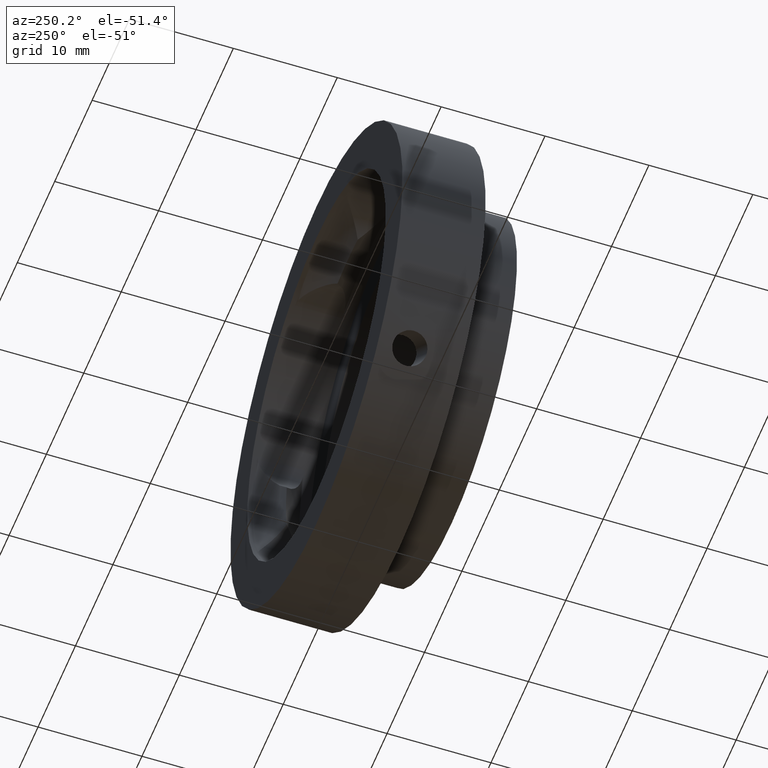
[diagram: clean part render]
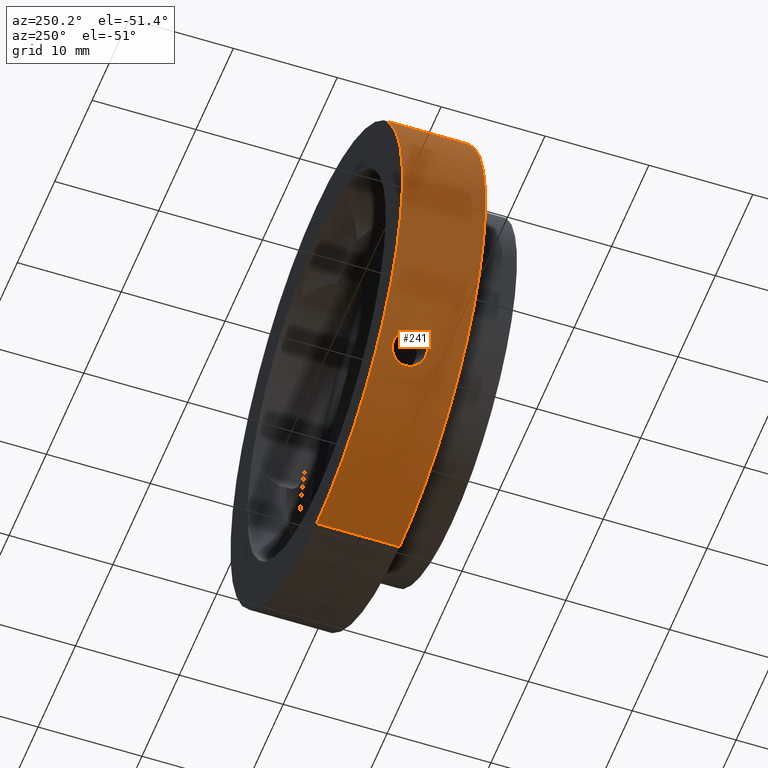
[diagram: same view with one face highlighted and labeled with its STEP entity id]
A machine part, auxiliary view. The second image highlights one B-rep face of the part: STEP entity #241.
In plain terms, the highlighted cylindrical surface (partial cylindrical patch) has radius 23 mm, axis along (-0, -1, -0).
Its self-contained STEP definition (entity closure, byte-faithful):
#1 = CARTESIAN_POINT ( 'NONE',  ( -15.44766139996509000, 0.9967213114754006600, -17.04023935489254200 ) ) ;
#4 = B_SPLINE_CURVE_WITH_KNOTS ( 'NONE', 3,
 ( #167, #364, #1014, #1008, #1020, #450, #83, #826, #555, #545, #1121, #77, #652, #648, #455, #920, #1216, #1117, #840, #1222, #1212, #445, #747, #741 ),
 .UNSPECIFIED., .F., .F.,
 ( 4, 2, 2, 2, 2, 2, 2, 2, 2, 2, 2, 4 ),
 ( 0.005160308724662709800, 0.005805198789600641100, 0.006450088854538571500, 0.006772533887007533200, 0.007094978919476494100, 0.007417423951945455900, 0.007739868984414413300, 0.008384759049352329800, 0.008707204081821285500, 0.009029649114290237700, 0.009674539179228147300, 0.01031942924416605700 ),
 .UNSPECIFIED. ) ;
#16 = B_SPLINE_CURVE_WITH_KNOTS ( 'NONE', 3,
 ( #1072, #513, #156, #1195, #339, #617, #1003, #727, #991, #238, #245, #708, #897, #427, #1185, #68, #805, #438, #913, #811, #242, #716, #816, #346, #1200, #422, #1098, #530, #534, #998 ),
 .UNSPECIFIED., .F., .F.,
 ( 4, 2, 2, 2, 2, 2, 2, 2, 2, 2, 2, 2, 2, 2, 4 ),
 ( 0.0000000000000000000, 0.0003225192952914211500, 0.0006450385905828423000, 0.0009675578858742635600, 0.001290077181165682200, 0.001935115771748520400, 0.002580154362331358400, 0.002902673657622777600, 0.003225192952914196300, 0.003547712248205615100, 0.003870231543497033900, 0.004192750838788453100, 0.004515270134079872300, 0.004837789429371290600, 0.005160308724662709800 ),
 .UNSPECIFIED. ) ;
#54 = EDGE_CURVE ( 'NONE', #360, #614, #989, .T. ) ;
#68 = CARTESIAN_POINT ( 'NONE',  ( -16.92331543695808400, 2.593873815498271900, -15.57602633159074700 ) ) ;
#77 = CARTESIAN_POINT ( 'NONE',  ( -16.77989647972865600, -0.6424296335856365400, -15.73042265511519800 ) ) ;
#83 = CARTESIAN_POINT ( 'NONE',  ( -17.30994875816762500, -0.3149916606470508100, -15.14508916357058900 ) ) ;
#97 = ORIENTED_EDGE ( 'NONE', *, *, #736, .T. ) ;
#125 = EDGE_LOOP ( 'NONE', ( #253, #97 ) ) ;
#145 = DIRECTION ( 'NONE',  ( 0.0000000000000000000, 0.0000000000000000000, -1.000000000000000000 ) ) ;
#156 = CARTESIAN_POINT ( 'NONE',  ( -15.45561874586875800, 1.213005735999293600, -17.03303528824541900 ) ) ;
#160 = AXIS2_PLACEMENT_3D ( 'NONE', #961, #863, #1156 ) ;
#167 = CARTESIAN_POINT ( 'NONE',  ( -17.72726297305279500, 0.9967213114754011100, -14.65415120313118700 ) ) ;
#192 = AXIS2_PLACEMENT_3D ( 'NONE', #979, #587, #779 ) ;
#204 = VERTEX_POINT ( 'NONE', #986 ) ;
#229 = AXIS2_PLACEMENT_3D ( 'NONE', #709, #322, #145 ) ;
#238 = CARTESIAN_POINT ( 'NONE',  ( -15.91383400489658400, 2.315821367834294300, -16.60641791718705900 ) ) ;
#241 = ADVANCED_FACE ( 'NONE', ( #623, #1217 ), #771, .T. ) ;
#242 = CARTESIAN_POINT ( 'NONE',  ( -17.36431923575034000, 2.240690295592193200, -15.08265123234195700 ) ) ;
#245 = CARTESIAN_POINT ( 'NONE',  ( -16.04657860019279500, 2.438737273295231900, -16.47867625090804100 ) ) ;
#253 = ORIENTED_EDGE ( 'NONE', *, *, #642, .T. ) ;
#322 = DIRECTION ( 'NONE',  ( -0.0000000000000000000, -1.000000000000000000, -0.0000000000000000000 ) ) ;
#327 = EDGE_CURVE ( 'NONE', #614, #462, #679, .T. ) ;
#339 = CARTESIAN_POINT ( 'NONE',  ( -15.51026273862126600, 1.528768532356171100, -16.98332927738880100 ) ) ;
#346 = CARTESIAN_POINT ( 'NONE',  ( -17.58688423352036200, 1.824565814876205200, -14.82245206190062000 ) ) ;
#360 = VERTEX_POINT ( 'NONE', #1202 ) ;
#364 = CARTESIAN_POINT ( 'NONE',  ( -17.72726297305280200, 0.7813614714430838800, -14.65415120313118700 ) ) ;
#388 = ORIENTED_EDGE ( 'NONE', *, *, #327, .T. ) ;
#422 = CARTESIAN_POINT ( 'NONE',  ( -17.67339685818029700, 1.528185979010050900, -14.71912923477193400 ) ) ;
#427 = CARTESIAN_POINT ( 'NONE',  ( -16.70427298419370000, 2.646759819239042200, -15.81071959697881700 ) ) ;
#438 = CARTESIAN_POINT ( 'NONE',  ( -17.12687713283452600, 2.480018730872364700, -15.35187509221776000 ) ) ;
#445 = CARTESIAN_POINT ( 'NONE',  ( -15.48031133397993200, 0.5620187209824064600, -17.01078453538498500 ) ) ;
#450 = CARTESIAN_POINT ( 'NONE',  ( -17.36568645736031900, -0.2452972575765536300, -15.08107173812139300 ) ) ;
#455 = CARTESIAN_POINT ( 'NONE',  ( -16.33052779755141200, -0.6107238525325797700, -16.19734231578721100 ) ) ;
#462 = VERTEX_POINT ( 'NONE', #1057 ) ;
#482 = EDGE_CURVE ( 'NONE', #204, #462, #900, .T. ) ;
#513 = CARTESIAN_POINT ( 'NONE',  ( -15.44766139996508900, 1.105778346531212300, -17.04023935489253800 ) ) ;
#530 = CARTESIAN_POINT ( 'NONE',  ( -17.72037319173840700, 1.213819330326514100, -14.66249710440955100 ) ) ;
#534 = CARTESIAN_POINT ( 'NONE',  ( -17.72726297305279900, 1.104426031423260600, -14.65415120313119100 ) ) ;
#545 = CARTESIAN_POINT ( 'NONE',  ( -16.99429736893803900, -0.5685004080243772900, -15.49851028631081500 ) ) ;
#547 = LINE ( 'NONE', #1192, #1078 ) ;
#555 = CARTESIAN_POINT ( 'NONE',  ( -17.12818256580745300, -0.4856056664416629800, -15.35041778425414800 ) ) ;
#583 = VERTEX_POINT ( 'NONE', #607 ) ;
#587 = DIRECTION ( 'NONE',  ( -0.0000000000000000000, -1.000000000000000000, -0.0000000000000000000 ) ) ;
#607 = CARTESIAN_POINT ( 'NONE',  ( -17.72726297305279500, 0.9967213114754011100, -14.65415120313118700 ) ) ;
#614 = VERTEX_POINT ( 'NONE', #894 ) ;
#617 = CARTESIAN_POINT ( 'NONE',  ( -15.57147253405267200, 1.728587864003210400, -16.92722560511669600 ) ) ;
#622 = VECTOR ( 'NONE', #743, 1000.000000000000000 ) ;
#623 = FACE_OUTER_BOUND ( 'NONE', #960, .T. ) ;
#642 = EDGE_CURVE ( 'NONE', #831, #583, #16, .T. ) ;
#648 = CARTESIAN_POINT ( 'NONE',  ( -16.48079120553862600, -0.6534534417487599700, -16.04465498511781300 ) ) ;
#652 = CARTESIAN_POINT ( 'NONE',  ( -16.70644744624456700, -0.6531905102843889000, -15.80843040323341800 ) ) ;
#679 = LINE ( 'NONE', #1109, #622 ) ;
#708 = CARTESIAN_POINT ( 'NONE',  ( -16.32879319957635300, 2.603304491804004700, -16.19907307224321300 ) ) ;
#709 = CARTESIAN_POINT ( 'NONE',  ( 0.0000000000000000000, 0.0000000000000000000, 0.0000000000000000000 ) ) ;
#716 = CARTESIAN_POINT ( 'NONE',  ( -17.46510041364926700, 2.086668274556989100, -14.96583503379159000 ) ) ;
#727 = CARTESIAN_POINT ( 'NONE',  ( -15.69675397233179700, 2.002699746044665800, -16.81117227626060600 ) ) ;
#732 = ORIENTED_EDGE ( 'NONE', *, *, #766, .F. ) ;
#736 = EDGE_CURVE ( 'NONE', #583, #831, #4, .T. ) ;
#741 = CARTESIAN_POINT ( 'NONE',  ( -15.44766139996509000, 0.9967213114754006600, -17.04023935489254200 ) ) ;
#743 = DIRECTION ( 'NONE',  ( -0.0000000000000000000, -1.000000000000000000, -0.0000000000000000000 ) ) ;
#747 = CARTESIAN_POINT ( 'NONE',  ( -15.44766139996508700, 0.7786574639913896900, -17.04023935489254200 ) ) ;
#766 = EDGE_CURVE ( 'NONE', #360, #204, #547, .T. ) ;
#771 = CYLINDRICAL_SURFACE ( 'NONE', #229, 23.00000000000000000 ) ;
#779 = DIRECTION ( 'NONE',  ( 0.0000000000000000000, 0.0000000000000000000, -1.000000000000000000 ) ) ;
#803 = ORIENTED_EDGE ( 'NONE', *, *, #482, .F. ) ;
#805 = CARTESIAN_POINT ( 'NONE',  ( -16.99281058578322500, 2.562697969796377900, -15.50014121116191400 ) ) ;
#811 = CARTESIAN_POINT ( 'NONE',  ( -17.30953435371573700, 2.308886918681045200, -15.14556115534401400 ) ) ;
#816 = CARTESIAN_POINT ( 'NONE',  ( -17.50950378445725500, 2.003254011055107100, -14.91378085505705000 ) ) ;
#826 = CARTESIAN_POINT ( 'NONE',  ( -17.19125014439012800, -0.4348849891677245600, -15.27969143195955600 ) ) ;
#831 = VERTEX_POINT ( 'NONE', #1 ) ;
#840 = CARTESIAN_POINT ( 'NONE',  ( -15.85894296417167100, -0.2468789653253126400, -16.65832355299100300 ) ) ;
#863 = DIRECTION ( 'NONE',  ( -0.0000000000000000000, -1.000000000000000000, -0.0000000000000000000 ) ) ;
#894 = CARTESIAN_POINT ( 'NONE',  ( 0.0000000000000000000, 3.996721311475401000, -23.00000000000000000 ) ) ;
#897 = CARTESIAN_POINT ( 'NONE',  ( -16.48116164656007100, 2.646643977546606900, -16.04424106023627400 ) ) ;
#900 = CIRCLE ( 'NONE', #160, 23.00000000000000000 ) ;
#913 = CARTESIAN_POINT ( 'NONE',  ( -17.19119933579529700, 2.428344738327820300, -15.27974697597059300 ) ) ;
#920 = CARTESIAN_POINT ( 'NONE',  ( -16.11732465186555500, -0.4866228482670308900, -16.40859089400166900 ) ) ;
#934 = DIRECTION ( 'NONE',  ( -0.0000000000000000000, -1.000000000000000000, -0.0000000000000000000 ) ) ;
#960 = EDGE_LOOP ( 'NONE', ( #732, #1191, #388, #803 ) ) ;
#961 = CARTESIAN_POINT ( 'NONE',  ( 0.0000000000000000000, -4.003278688524598100, 0.0000000000000000000 ) ) ;
#979 = CARTESIAN_POINT ( 'NONE',  ( 0.0000000000000000000, 3.996721311475401000, 0.0000000000000000000 ) ) ;
#986 = CARTESIAN_POINT ( 'NONE',  ( 2.816687638038912400E-015, -4.003278688524598100, 23.00000000000000000 ) ) ;
#989 = CIRCLE ( 'NONE', #192, 23.00000000000000000 ) ;
#991 = CARTESIAN_POINT ( 'NONE',  ( -15.74772904781059100, 2.087585533024908000, -16.76349715992044400 ) ) ;
#998 = CARTESIAN_POINT ( 'NONE',  ( -17.72726297305279500, 0.9967213114754011100, -14.65415120313118700 ) ) ;
#1003 = CARTESIAN_POINT ( 'NONE',  ( -15.60884797078219300, 1.823353475024227700, -16.89282284270560200 ) ) ;
#1008 = CARTESIAN_POINT ( 'NONE',  ( -17.59406203948773500, 0.1671239941736500100, -14.81403948723100900 ) ) ;
#1014 = CARTESIAN_POINT ( 'NONE',  ( -17.69971779214310800, 0.5642679912549956000, -14.68764021403968400 ) ) ;
#1020 = CARTESIAN_POINT ( 'NONE',  ( -17.51480662075842800, -0.01697951345439254600, -14.90820957259062300 ) ) ;
#1057 = CARTESIAN_POINT ( 'NONE',  ( 0.0000000000000000000, -4.003278688524598100, -23.00000000000000000 ) ) ;
#1072 = CARTESIAN_POINT ( 'NONE',  ( -15.44766139996509000, 0.9967213114754006600, -17.04023935489254200 ) ) ;
#1078 = VECTOR ( 'NONE', #934, 1000.000000000000000 ) ;
#1098 = CARTESIAN_POINT ( 'NONE',  ( -17.69337492292017400, 1.425317505922472500, -14.69506485961458100 ) ) ;
#1109 = CARTESIAN_POINT ( 'NONE',  ( 0.0000000000000000000, 0.0000000000000000000, -23.00000000000000000 ) ) ;
#1117 = CARTESIAN_POINT ( 'NONE',  ( -15.92046639225844600, -0.3164859605891586800, -16.59960241352810300 ) ) ;
#1121 = CARTESIAN_POINT ( 'NONE',  ( -16.92344892014337500, -0.6003527059690440000, -15.57587876898988800 ) ) ;
#1156 = DIRECTION ( 'NONE',  ( 0.0000000000000000000, 0.0000000000000000000, -1.000000000000000000 ) ) ;
#1185 = CARTESIAN_POINT ( 'NONE',  ( -16.77925100346654500, 2.636021878823212800, -15.73111367398567900 ) ) ;
#1191 = ORIENTED_EDGE ( 'NONE', *, *, #54, .T. ) ;
#1192 = CARTESIAN_POINT ( 'NONE',  ( 2.816687638038912400E-015, 0.0000000000000000000, 23.00000000000000000 ) ) ;
#1195 = CARTESIAN_POINT ( 'NONE',  ( -15.48673012156458900, 1.423953025278757800, -17.00475322049947000 ) ) ;
#1200 = CARTESIAN_POINT ( 'NONE',  ( -17.62016994940928400, 1.728107706012863100, -14.78280531193554000 ) ) ;
#1202 = CARTESIAN_POINT ( 'NONE',  ( 2.816687638038912400E-015, 3.996721311475401000, 23.00000000000000000 ) ) ;
#1212 = CARTESIAN_POINT ( 'NONE',  ( -15.60215225229327100, 0.1651351400926817400, -16.89910277507360400 ) ) ;
#1216 = CARTESIAN_POINT ( 'NONE',  ( -16.04949171429322900, -0.4360004396876471200, -16.47488592212619100 ) ) ;
#1217 = FACE_BOUND ( 'NONE', #125, .T. ) ;
#1222 = CARTESIAN_POINT ( 'NONE',  ( -15.69272285880968600, -0.01871491106812157200, -16.81551995700790100 ) ) ;